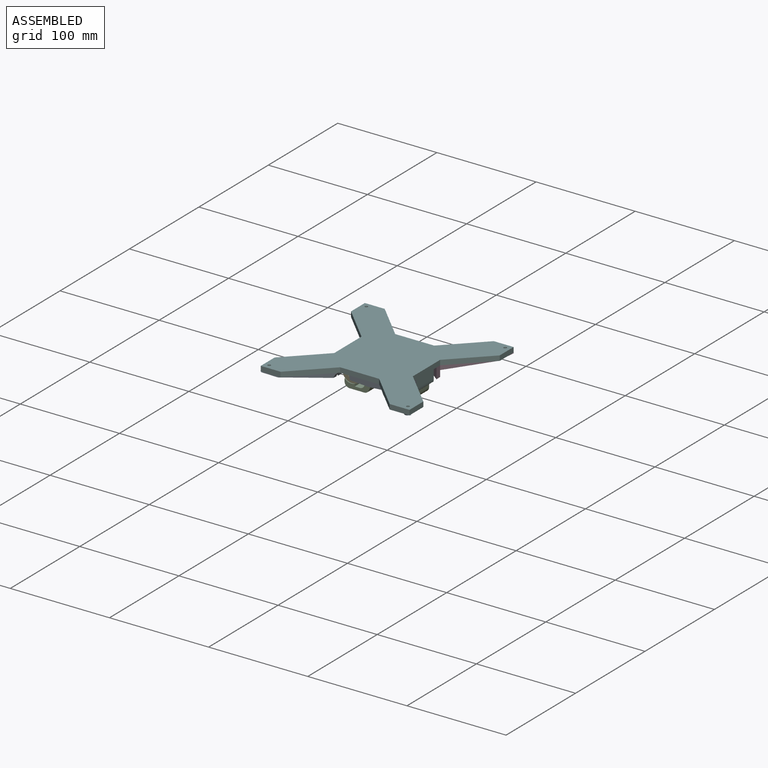
[diagram: assembled view]
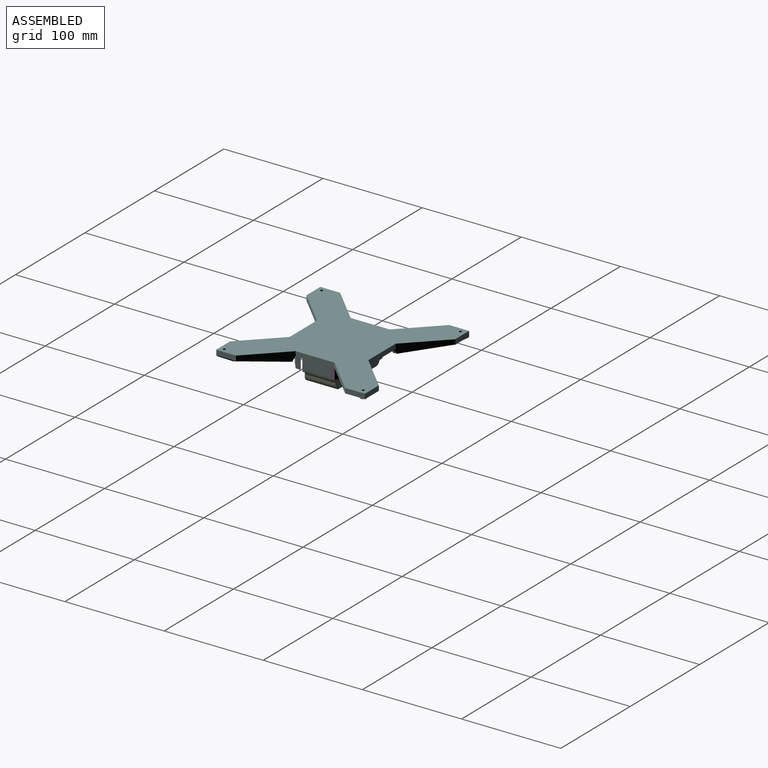
[diagram: assembled view, second angle]
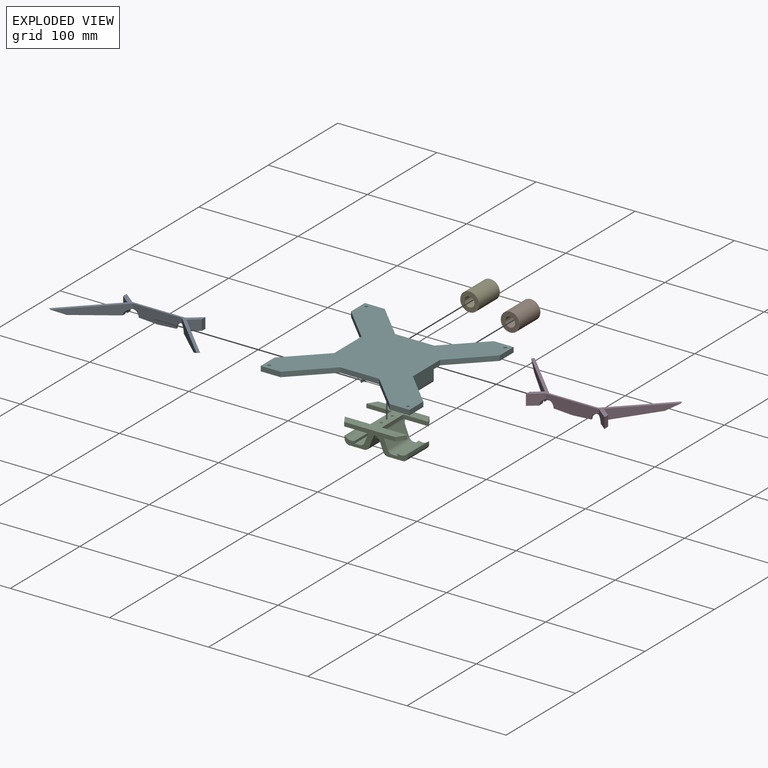
[diagram: exploded view]
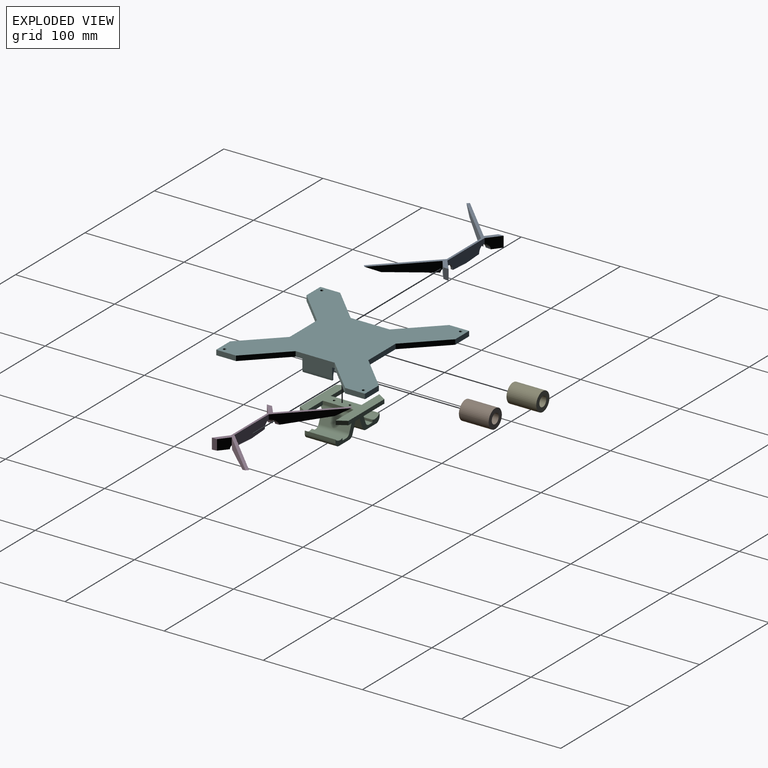
[diagram: exploded view, second angle]
ASSEMBLY  parts=6 mates=9
PART A: 23 faces, bbox 152.1x61.6x12.7 mm
  f0: plane 19.02x2.12mm, normal (-0.06,-0.06,-1), area 40.5mm2, adj f12,f13,f16,f22
  f1: plane 12.09x8.66mm, normal (-0.06,-0.06,-1), area 45mm2, adj f5,f6,f7,f22
  f2: plane 37.21x35.12mm, normal (0.06,-0.06,-1), area 145mm2, adj f14,f15,f17,f21
  f3: plane 12.09x8.66mm, normal (0.06,-0.06,-1), area 45mm2, adj f18,f19,f20,f21
  f4: plane 37.21x35.12mm, normal (-0.06,-0.06,-1), area 145mm2, adj f9,f10,f11,f22
  f5: plane 12.83x10.95mm, normal (0.62,0.78,0), area 156.9mm2, adj f1,f7,f8,f13,f22
  f6: plane 10.62x9.95mm, normal (-0.62,-0.78,0), area 130.8mm2, adj f1,f7,f8,f9,f22
  f7: plane 10.83x5.19mm, normal (-1,0,0), area 55.3mm2, adj f1,f5,f6,f8
  f8: plane 152.12x61.6mm, normal (0,0,1), area 645.3mm2, adj f5,f6,f7,f9,f10,f11,f12,f13
  f9: plane 46.36x46.36mm, normal (-0.71,0.71,0), area 466.2mm2, adj f4,f6,f8,f10,f22
  f10: plane 12.12x12.12mm, normal (-0.28,-0.28,-0.92), area 46.1mm2, adj f4,f8,f9,f11
  f11: plane 49.25x49.25mm, normal (0.71,-0.71,0), area 475.2mm2, adj f4,f8,f10,f12,f22
  f12: plane 49.38x12.57mm, normal (0,-1,0), area 527.1mm2, adj f0,f8,f11,f16,f17,f21,f22
  f13: plane 53.62x12.71mm, normal (0,1,0), area 553.8mm2, adj f0,f5,f8,f16,f18,f21,f22
  f14: plane 46.36x46.36mm, normal (0.71,0.71,0), area 466.2mm2, adj f2,f8,f15,f19,f21
  f15: plane 12.12x12.12mm, normal (0.28,-0.28,-0.92), area 46.1mm2, adj f2,f8,f14,f17
  f16: plane 19.02x2.12mm, normal (0.06,-0.06,-1), area 40.5mm2, adj f0,f12,f13,f21
  f17: plane 49.25x49.25mm, normal (-0.71,-0.71,0), area 475.2mm2, adj f2,f8,f12,f15,f21
  f18: plane 12.83x10.95mm, normal (-0.62,0.78,0), area 156.9mm2, adj f3,f8,f13,f20,f21
  f19: plane 10.62x9.95mm, normal (0.62,-0.78,0), area 130.8mm2, adj f3,f8,f14,f20,f21
  f20: plane 10.83x5.19mm, normal (1,0,0), area 55.3mm2, adj f3,f8,f18,f19
  f21: cylinder r=6mm len=12mm, axis (0,-1,0), area 86.1mm2, adj f2,f3,f12,f13,f14,f16,f17,f18
  f22: cylinder r=6mm len=12mm, axis (0,-1,0), area 86.1mm2, adj f0,f1,f4,f5,f6,f9,f11,f12
PART B: 4 faces, bbox 19x30x19 mm
  f0: cylinder r=5mm len=30mm, axis (0,1,0), area 942.5mm2, adj f2,f3
  f1: cylinder r=9.5mm len=30mm, axis (0,1,0), area 1790.7mm2, adj f2,f3
  f2: plane 19x19mm, normal (0,-1,0), area 205mm2, adj f0,f1
  f3: plane 19x19mm, normal (0,1,0), area 205mm2, adj f0,f1
PART C: 66 faces, bbox 63.8x49.2x25.2 mm
  f0: plane 32.64x15.63mm, normal (0.93,0,0.37), area 379.7mm2, adj f8,f15,f18,f23,f40,f45,f46,f50
  f1: plane 32.64x15.63mm, normal (-0.93,0,0.37), area 379.7mm2, adj f18,f27,f34,f39,f40,f45,f46,f49
  f2: plane 63x9mm, normal (0,0,1), area 457.7mm2, adj f3,f4,f5,f17,f18,f24,f25,f36
  f3: plane 51.75x4mm, normal (0,1,0), area 207mm2, adj f2,f4,f7,f24
  f4: plane 9x5.62mm, normal (-0.85,0.53,0), area 42.5mm2, adj f2,f3,f5,f7
  f5: plane 25.73x4mm, normal (0,-1,0), area 102.9mm2, adj f2,f4,f6,f7,f17
  f6: plane 31x3.03mm, normal (-1,0,0), area 93.9mm2, adj f5,f7,f17,f22
  f7: plane 63x49mm, normal (0,0,-1), area 1381mm2, adj f3,f4,f5,f6,f20,f21,f22,f24
  f8: plane 29.76x16mm, normal (0,1,0), area 166.2mm2, adj f0,f9,f10,f11,f12,f13,f14,f15
  f9: plane 31x14.92mm, normal (0,0,1), area 462.5mm2, adj f8,f15,f23,f65
  f10: plane 31x2.7mm, normal (-1,0,0), area 83.8mm2, adj f8,f11,f23,f65
  f11: cylinder r=9.25mm len=31mm, axis (0,-1,0), area 345.4mm2, adj f8,f10,f12,f23
  f12: plane 31x2.42mm, normal (1,0,0), area 75mm2, adj f8,f11,f13,f23
  f13: plane 31x5.13mm, normal (0,0,-1), area 159mm2, adj f8,f12,f16,f23
  f14: plane 35.49x14.19mm, normal (-0.93,0,-0.37), area 472.8mm2, adj f8,f16,f17,f18,f23,f40
  f15: cylinder r=5mm len=31mm, axis (0,-1,0), area 184mm2, adj f0,f8,f9,f23
  f16: cylinder r=5mm len=31mm, axis (0,1,0), area 184mm2, adj f8,f13,f14,f23
  f17: cylinder r=5mm len=41mm, axis (0,1,0), area 66.2mm2, adj f2,f5,f6,f14,f18,f19,f22,f40
  f18: cylinder r=5mm len=15.59mm, axis (-1,0,0), area 94.1mm2, adj f0,f1,f2,f8,f14,f17,f27,f33
  f19: plane 63x9mm, normal (0,0,1), area 457.7mm2, adj f17,f20,f21,f22,f36,f37,f38,f40
  f20: plane 51.75x4mm, normal (0,-1,0), area 207mm2, adj f7,f19,f21,f37
  f21: plane 9x5.62mm, normal (-0.85,-0.53,0), area 42.5mm2, adj f7,f19,f20,f22
  f22: plane 25.73x4mm, normal (0,1,0), area 102.9mm2, adj f6,f7,f17,f19,f21
  f23: plane 29.76x16mm, normal (0,-1,0), area 166.2mm2, adj f0,f9,f10,f11,f12,f13,f14,f15
  f24: plane 9x5.62mm, normal (0.85,0.53,0), area 42.5mm2, adj f2,f3,f7,f25
  f25: plane 25.73x4mm, normal (0,-1,0), area 102.9mm2, adj f2,f7,f24,f26,f36
  f26: plane 31x3.03mm, normal (1,0,0), area 93.9mm2, adj f7,f25,f36,f38
  f27: plane 29.76x16mm, normal (0,1,0), area 166.2mm2, adj f1,f18,f28,f29,f30,f31,f32,f33
  f28: plane 31x14.92mm, normal (0,0,1), area 462.5mm2, adj f27,f34,f39,f64
  f29: plane 31x2.7mm, normal (1,0,0), area 83.8mm2, adj f27,f30,f39,f64
  f30: cylinder r=9.25mm len=31mm, axis (0,-1,0), area 345.4mm2, adj f27,f29,f31,f39
  f31: plane 31x2.42mm, normal (-1,0,0), area 75mm2, adj f27,f30,f32,f39
  f32: plane 31x5.13mm, normal (0,0,-1), area 159mm2, adj f27,f31,f35,f39
  f33: plane 35.49x14.19mm, normal (0.93,0,-0.37), area 472.8mm2, adj f18,f27,f35,f36,f39,f40
  f34: cylinder r=5mm len=31mm, axis (0,-1,0), area 184mm2, adj f1,f27,f28,f39
  f35: cylinder r=5mm len=31mm, axis (0,1,0), area 184mm2, adj f27,f32,f33,f39
  f36: cylinder r=5mm len=41mm, axis (0,1,0), area 66.2mm2, adj f2,f18,f19,f25,f26,f33,f38,f40
  f37: plane 9x5.62mm, normal (0.85,-0.53,0), area 42.5mm2, adj f7,f19,f20,f38
  f38: plane 25.73x4mm, normal (0,1,0), area 102.9mm2, adj f7,f19,f26,f36,f37
  f39: plane 29.76x16mm, normal (0,-1,0), area 166.2mm2, adj f1,f28,f29,f30,f31,f32,f33,f34
  f40: cylinder r=5mm len=15.59mm, axis (1,0,0), area 94.1mm2, adj f0,f1,f14,f17,f19,f23,f33,f36
  f41: cylinder r=1.25mm len=13.3mm, axis (0,0,-1), area 104.5mm2, adj f7,f46
  f42: cylinder r=1.25mm len=13.3mm, axis (0,0,-1), area 104.5mm2, adj f7,f45
  f43: cylinder r=4mm len=6.63mm, axis (0,0,-1), area 15mm2, adj f45,f53,f54
  f44: cylinder r=4mm len=6.63mm, axis (0,0,-1), area 15mm2, adj f45,f61,f63
  f45: plane 8.24x7.52mm, normal (0,0,1), area 49.2mm2, adj f0,f1,f42,f43,f44,f53,f54,f61
  f46: plane 8.24x7.52mm, normal (0,0,1), area 49.2mm2, adj f0,f1,f41,f47,f48,f49,f52,f57
  f47: cylinder r=4mm len=6.63mm, axis (0,0,-1), area 15mm2, adj f46,f49,f52
  f48: cylinder r=4mm len=6.63mm, axis (0,0,-1), area 15mm2, adj f46,f57,f59
  f49: bspline ~7.45x3.79mm, area 13.6mm2, adj f1,f46,f47,f51
  f50: cylinder r=1mm len=3.3mm, axis (0,-1,0), area 7.8mm2, adj f0,f1,f40,f51
  f51: sphere r=1mm, area 2.5mm2, adj f49,f50,f52
  f52: bspline ~7.45x3.79mm, area 13.6mm2, adj f0,f46,f47,f51
  f53: bspline ~7.45x3.79mm, area 13.6mm2, adj f0,f43,f45,f55
  f54: bspline ~7.45x3.79mm, area 13.6mm2, adj f1,f43,f45,f55
  f55: sphere r=1mm, area 2.5mm2, adj f53,f54,f56
  f56: cylinder r=1mm len=6mm, axis (0,-1,0), area 14.2mm2, adj f0,f1,f55,f58
  f57: bspline ~7.45x3.79mm, area 13.6mm2, adj f1,f46,f48,f58
  f58: sphere r=1mm, area 2.5mm2, adj f56,f57,f59
  f59: bspline ~7.45x3.79mm, area 13.6mm2, adj f0,f46,f48,f58
  f60: cylinder r=1mm len=3.3mm, axis (0,-1,0), area 7.8mm2, adj f0,f1,f18,f62
  f61: bspline ~7.45x3.79mm, area 13.6mm2, adj f1,f44,f45,f62
  f62: sphere r=1mm, area 2.5mm2, adj f60,f61,f63
  f63: bspline ~7.45x3.79mm, area 13.6mm2, adj f0,f44,f45,f62
  f64: cylinder r=5mm len=31mm, axis (0,-1,0), area 243.5mm2, adj f27,f28,f29,f39
  f65: cylinder r=5mm len=31mm, axis (0,-1,0), area 243.5mm2, adj f8,f9,f10,f23
PART D: 23 faces, bbox 152.1x61.6x12.7 mm
  f0: plane 19.02x2.12mm, normal (-0.06,0.06,-1), area 40.5mm2, adj f12,f13,f16,f22
  f1: plane 37.21x35.12mm, normal (-0.06,0.06,-1), area 145mm2, adj f9,f10,f11,f22
  f2: plane 12.09x8.66mm, normal (0.06,0.06,-1), area 45mm2, adj f18,f19,f20,f21
  f3: plane 37.21x35.12mm, normal (0.06,0.06,-1), area 145mm2, adj f14,f15,f17,f21
  f4: plane 12.09x8.66mm, normal (-0.06,0.06,-1), area 45mm2, adj f5,f6,f7,f22
  f5: plane 12.83x10.95mm, normal (0.62,-0.78,0), area 156.9mm2, adj f4,f7,f8,f13,f22
  f6: plane 10.62x9.95mm, normal (-0.62,0.78,0), area 130.8mm2, adj f4,f7,f8,f9,f22
  f7: plane 10.83x5.19mm, normal (-1,0,0), area 55.3mm2, adj f4,f5,f6,f8
  f8: plane 152.12x61.6mm, normal (0,0,1), area 645.3mm2, adj f5,f6,f7,f9,f10,f11,f12,f13
  f9: plane 46.36x46.36mm, normal (-0.71,-0.71,0), area 466.2mm2, adj f1,f6,f8,f10,f22
  f10: plane 12.12x12.12mm, normal (-0.28,0.28,-0.92), area 46.1mm2, adj f1,f8,f9,f11
  f11: plane 49.25x49.25mm, normal (0.71,0.71,0), area 475.2mm2, adj f1,f8,f10,f12,f22
  f12: plane 49.38x12.57mm, normal (0,1,0), area 527.1mm2, adj f0,f8,f11,f16,f17,f21,f22
  f13: plane 53.62x12.71mm, normal (0,-1,0), area 553.8mm2, adj f0,f5,f8,f16,f18,f21,f22
  f14: plane 46.36x46.36mm, normal (0.71,-0.71,0), area 466.2mm2, adj f3,f8,f15,f19,f21
  f15: plane 12.12x12.12mm, normal (0.28,0.28,-0.92), area 46.1mm2, adj f3,f8,f14,f17
  f16: plane 19.02x2.12mm, normal (0.06,0.06,-1), area 40.5mm2, adj f0,f12,f13,f21
  f17: plane 49.25x49.25mm, normal (-0.71,0.71,0), area 475.2mm2, adj f3,f8,f12,f15,f21
  f18: plane 12.83x10.95mm, normal (-0.62,-0.78,0), area 156.9mm2, adj f2,f8,f13,f20,f21
  f19: plane 10.62x9.95mm, normal (0.62,0.78,0), area 130.8mm2, adj f2,f8,f14,f20,f21
  f20: plane 10.83x5.19mm, normal (1,0,0), area 55.3mm2, adj f2,f8,f18,f19
  f21: cylinder r=6mm len=12mm, axis (0,-1,0), area 86.1mm2, adj f2,f3,f12,f13,f14,f16,f17,f18
  f22: cylinder r=6mm len=12mm, axis (0,-1,0), area 86.1mm2, adj f0,f1,f4,f5,f6,f9,f11,f12
PART E: same geometry as B
PART F: 50 faces, bbox 150x150x22.6 mm
  f0: plane 35.36x35.36mm, normal (-0.71,-0.71,0), area 250mm2, adj f1,f21,f24,f25
  f1: plane 39.29x5mm, normal (-1,0,0), area 196.4mm2, adj f0,f2,f24,f25
  f2: plane 35.36x35.36mm, normal (-0.71,0.71,0), area 250mm2, adj f1,f3,f24,f25
  f3: plane 20x5mm, normal (-1,0,0), area 100mm2, adj f2,f4,f24,f25
  f4: plane 20x5mm, normal (0,-1,0), area 100mm2, adj f3,f5,f24,f25
  f5: plane 35.36x35.36mm, normal (0.71,-0.71,0), area 250mm2, adj f4,f6,f24,f25
  f6: plane 39.29x5mm, normal (0,-1,0), area 196.4mm2, adj f5,f7,f24,f25
  f7: plane 35.36x35.36mm, normal (-0.71,-0.71,0), area 250mm2, adj f6,f8,f24,f25
  f8: plane 20x5mm, normal (0,-1,0), area 100mm2, adj f7,f9,f24,f25
  f9: plane 20x5mm, normal (1,0,0), area 100mm2, adj f8,f10,f24,f25
  f10: plane 35.36x35.36mm, normal (0.71,0.71,0), area 250mm2, adj f9,f11,f24,f25
  f11: plane 39.29x5mm, normal (1,0,0), area 196.4mm2, adj f10,f12,f24,f25
  f12: plane 35.36x35.36mm, normal (0.71,-0.71,0), area 250mm2, adj f11,f13,f24,f25
  f13: plane 20x5mm, normal (1,0,0), area 100mm2, adj f12,f14,f24,f25
  f14: plane 20x5mm, normal (0,1,0), area 100mm2, adj f13,f15,f24,f25
  f15: plane 35.36x35.36mm, normal (-0.71,0.71,0), area 250mm2, adj f14,f16,f24,f25
  f16: plane 39.29x5mm, normal (0,1,0), area 196.4mm2, adj f15,f17,f24,f25
  f17: plane 35.36x35.36mm, normal (0.71,0.71,0), area 250mm2, adj f16,f18,f24,f25
  f18: plane 20x5mm, normal (0,1,0), area 100mm2, adj f17,f21,f24,f25
  f19: cylinder r=1.5mm len=5mm, axis (0,0,-1), area 47.1mm2, adj f24,f25
  f20: cylinder r=1.5mm len=5mm, axis (0,0,-1), area 47.1mm2, adj f24,f25
  f21: plane 20x5mm, normal (-1,0,0), area 100mm2, adj f0,f18,f24,f25
  f22: cylinder r=1.5mm len=5mm, axis (0,0,-1), area 47.1mm2, adj f24,f25
  f23: cylinder r=1.5mm len=5mm, axis (0,0,-1), area 47.1mm2, adj f24,f25
  f24: plane 150x150mm, normal (0,0,1), area 11915.4mm2, adj f0,f1,f2,f3,f4,f5,f6,f7
  f25: plane 150x150mm, normal (0,0,-1), area 10083.3mm2, adj f0,f1,f2,f3,f4,f5,f6,f7
  f26: cylinder r=5mm len=30mm, axis (0,1,0), area 74.6mm2, adj f27,f33,f34,f35
  f27: cylinder r=11.5mm len=30mm, axis (0,1,0), area 175.9mm2, adj f26,f28,f34,f35
  f28: plane 30x1.23mm, normal (0.57,0,-0.82), area 45mm2, adj f27,f29,f34,f35
  f29: cylinder r=10mm len=30mm, axis (0,1,0), area 1204.3mm2, adj f28,f30,f34,f35
  f30: plane 30x1.45mm, normal (-0.26,0,-0.97), area 45mm2, adj f29,f31,f34,f35
  f31: cylinder r=11.5mm len=30mm, axis (0,1,0), area 90.3mm2, adj f30,f32,f34,f35
  f32: plane 30x11mm, normal (1,0,0), area 330mm2, adj f25,f31,f34,f35
  f33: plane 30x9.85mm, normal (-0.83,0,-0.56), area 357.6mm2, adj f25,f26,f34,f35
  f34: plane 30.5x17.6mm, normal (0,-1,0), area 151.4mm2, adj f25,f26,f27,f28,f29,f30,f31,f32
  f35: plane 30.5x17.6mm, normal (0,1,0), area 151.4mm2, adj f25,f26,f27,f28,f29,f30,f31,f32
  f36: cylinder r=5mm len=30mm, axis (0,1,0), area 74.6mm2, adj f37,f43,f44,f45
  f37: cylinder r=11.5mm len=30mm, axis (0,1,0), area 175.9mm2, adj f36,f38,f44,f45
  f38: plane 30x1.23mm, normal (-0.57,0,-0.82), area 45mm2, adj f37,f39,f44,f45
  f39: cylinder r=10mm len=30mm, axis (0,1,0), area 1204.3mm2, adj f38,f40,f44,f45
  f40: plane 30x1.45mm, normal (0.26,0,-0.97), area 45mm2, adj f39,f41,f44,f45
  f41: cylinder r=11.5mm len=30mm, axis (0,1,0), area 90.3mm2, adj f40,f42,f44,f45
  f42: plane 30x11mm, normal (-1,0,0), area 330mm2, adj f25,f41,f44,f45
  f43: plane 30x9.85mm, normal (0.83,0,-0.56), area 357.6mm2, adj f25,f36,f44,f45
  f44: plane 30.5x17.6mm, normal (0,-1,0), area 151.4mm2, adj f25,f36,f37,f38,f39,f40,f41,f42
  f45: plane 30.5x17.6mm, normal (0,1,0), area 151.4mm2, adj f25,f36,f37,f38,f39,f40,f41,f42
  f46: plane 2.02x2.02mm, normal (-0.71,0.71,0), area 2.9mm2, adj f25,f47,f48,f49
  f47: plane 2.02x1mm, normal (1,0,0), area 2mm2, adj f25,f46,f48,f49
  f48: plane 2.02x1mm, normal (0,-1,0), area 2mm2, adj f25,f46,f47,f49
  f49: plane 2.02x2.02mm, normal (0,0,-1), area 2mm2, adj f46,f47,f48
PLACE A t=(0,0,-5)mm
PLACE B t=(25,0,-16)mm
PLACE C rot(axis=(1,0,0),180deg) t=(0,-0.5,-5)mm
PLACE D t=(0,0,-5)mm
PLACE E t=(-25,0,-16)mm
PLACE F t=(0,0,-5)mm
MATE planar C.f22 <-> F.f45  axis (0,-1,0) through (-18.64,15,-7)mm
MATE fastened D.f20 <-> F.f11  axis (1,0,0) through (39.64,19.64,-5)mm
MATE cylindrical E.f1 <-> F.f37  axis (0,1,0) through (-25,15,-16)mm
MATE cylindrical B.f1 <-> F.f27  axis (0,1,0) through (25,15,-16)mm
MATE planar C.f7 <-> F.f25  axis (0,0,1) through (0,-0.5,-5)mm
MATE planar E.f1 <-> F.f45  axis (0,1,0) through (-25,15,-16)mm
MATE planar B.f1 <-> F.f35  axis (0,1,0) through (25,15,-16)mm
MATE fastened A.f20 <-> F.f11  axis (1,0,0) through (39.64,-19.64,-5)mm
MATE cylindrical B.f1 <-> C.f30  axis (0,1,0) through (25,0,-16)mm
